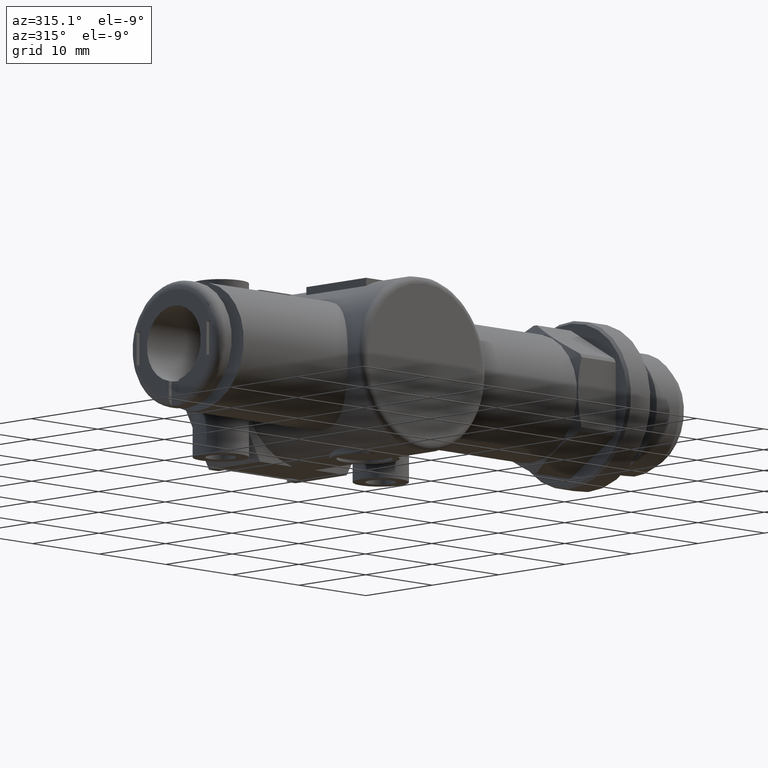
[diagram: clean part render]
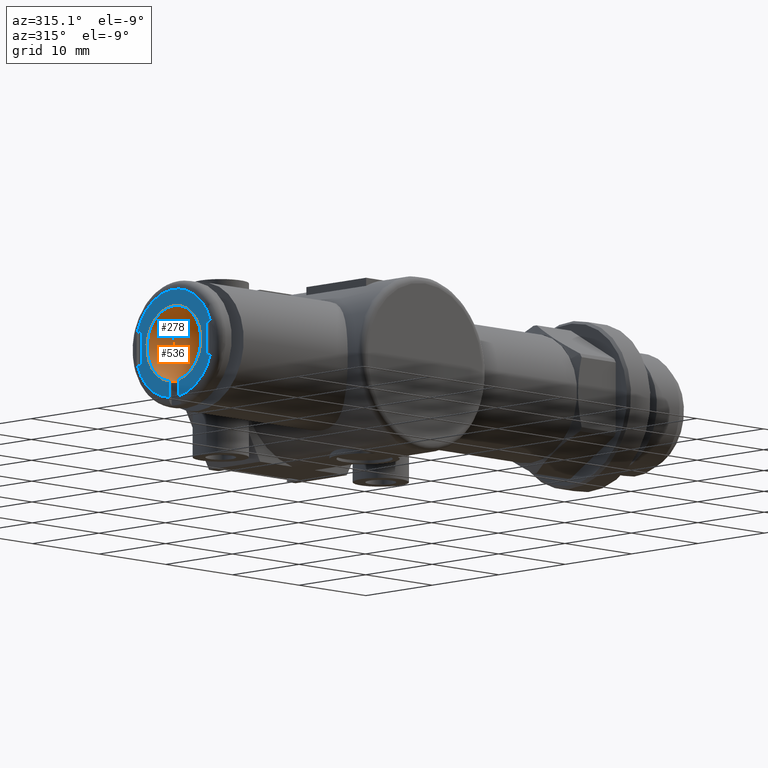
[diagram: same view with the hole feature highlighted: cylindrical wall and planar end face, labeled with their STEP entity ids]
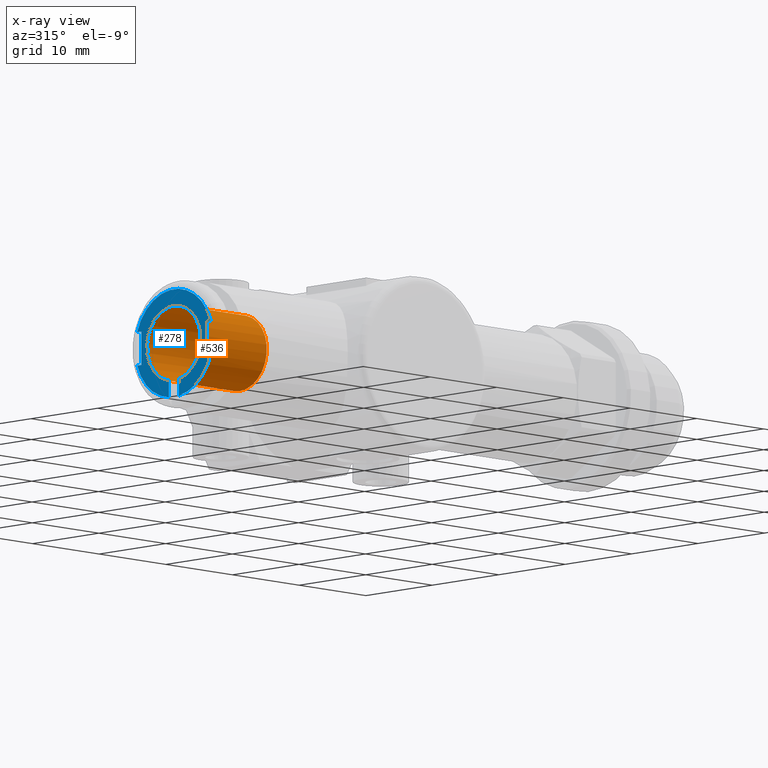
[diagram: x-ray of the same camera — body ghosted, the hole faces saturated]
A machine part, auxiliary view. The highlighted faces form one hole feature of diameter 8.1 mm: the cylindrical wall (entity #536, orange) and its adjacent planar end face (entity #278, blue) — they share a circular edge in the B-rep.
The next image is the same camera in x-ray (body ghosted, the hole faces saturated) — the bore reads through the body.
Wall:
#536 = ADVANCED_FACE( '', ( #1095, #1096 ), #1097, .F. );
#1095 = FACE_OUTER_BOUND( '', #1632, .T. );
#1096 = FACE_OUTER_BOUND( '', #1633, .T. );
#1097 = CYLINDRICAL_SURFACE( '', #1634, 4.05000000000000 );
#1632 = EDGE_LOOP( '', ( #2802 ) );
#1633 = EDGE_LOOP( '', ( #2803, #2804, #2805, #2806 ) );
#1634 = AXIS2_PLACEMENT_3D( '', #2807, #2808, #2809 );
#2802 = ORIENTED_EDGE( '', *, *, #2886, .T. );
#2803 = ORIENTED_EDGE( '', *, *, #3051, .T. );
#2804 = ORIENTED_EDGE( '', *, *, #3212, .T. );
#2805 = ORIENTED_EDGE( '', *, *, #3268, .T. );
#2806 = ORIENTED_EDGE( '', *, *, #2910, .T. );
#2807 = CARTESIAN_POINT( '', ( 9.90000000000000, 0.000000000000000, 0.000000000000000 ) );
#2808 = DIRECTION( '', ( -1.00000000000000, -0.000000000000000, 0.000000000000000 ) );
#2809 = DIRECTION( '', ( -0.000000000000000, 0.000000000000000, -1.00000000000000 ) );
#2886 = EDGE_CURVE( '', #3365, #3365, #3366, .T. );
#2910 = EDGE_CURVE( '', #3408, #3406, #3409, .F. );
#3051 = EDGE_CURVE( '', #3406, #3635, #3637, .T. );
#3212 = EDGE_CURVE( '', #3635, #3865, #3867, .F. );
#3268 = EDGE_CURVE( '', #3865, #3408, #3936, .F. );
#3365 = VERTEX_POINT( '', #4061 );
#3366 = CIRCLE( '', #4062, 4.05000000000000 );
#3406 = VERTEX_POINT( '', #4113 );
#3408 = VERTEX_POINT( '', #4116 );
#3409 = CIRCLE( '', #4117, 4.05000000000000 );
#3635 = VERTEX_POINT( '', #4777 );
#3637 = LINE( '', #4780, #4781 );
#3865 = VERTEX_POINT( '', #5259 );
#3867 = CIRCLE( '', #5262, 4.05000000000000 );
#3936 = LINE( '', #5392, #5393 );
#4061 = CARTESIAN_POINT( '', ( 9.90000000000000, 0.000000000000000, -4.05000000000000 ) );
#4062 = AXIS2_PLACEMENT_3D( '', #5464, #5465, #5466 );
#4113 = CARTESIAN_POINT( '', ( 0.000000000000000, 0.750000000000000, -3.97994974842648 ) );
#4116 = CARTESIAN_POINT( '', ( 0.000000000000000, -0.750000000000000, -3.97994974842648 ) );
#4117 = AXIS2_PLACEMENT_3D( '', #5497, #5498, #5499 );
#4777 = CARTESIAN_POINT( '', ( 0.399999999999999, 0.750000000000000, -3.97994974842648 ) );
#4780 = CARTESIAN_POINT( '', ( 9.90000000000000, 0.750000000000000, -3.97994974842648 ) );
#4781 = VECTOR( '', #5674, 1000.00000000000 );
#5259 = CARTESIAN_POINT( '', ( 0.400000000000001, -0.750000000000000, -3.97994974842648 ) );
#5262 = AXIS2_PLACEMENT_3D( '', #5863, #5864, #5865 );
#5392 = CARTESIAN_POINT( '', ( 9.90000000000000, -0.750000000000000, -3.97994974842648 ) );
#5393 = VECTOR( '', #5920, 1000.00000000000 );
#5464 = CARTESIAN_POINT( '', ( 9.90000000000000, 0.000000000000000, 0.000000000000000 ) );
#5465 = DIRECTION( '', ( 1.00000000000000, 0.000000000000000, -0.000000000000000 ) );
#5466 = DIRECTION( '', ( -0.000000000000000, 0.000000000000000, -1.00000000000000 ) );
#5497 = CARTESIAN_POINT( '', ( 0.000000000000000, 0.000000000000000, 0.000000000000000 ) );
#5498 = DIRECTION( '', ( 1.00000000000000, 0.000000000000000, 0.000000000000000 ) );
#5499 = DIRECTION( '', ( 0.000000000000000, 0.000000000000000, -1.00000000000000 ) );
#5674 = DIRECTION( '', ( 1.00000000000000, -0.000000000000000, -0.000000000000000 ) );
#5863 = CARTESIAN_POINT( '', ( 0.399999999999999, 0.000000000000000, 0.000000000000000 ) );
#5864 = DIRECTION( '', ( 1.00000000000000, 0.000000000000000, -0.000000000000000 ) );
#5865 = DIRECTION( '', ( -0.000000000000000, 0.000000000000000, -1.00000000000000 ) );
#5920 = DIRECTION( '', ( 1.00000000000000, -0.000000000000000, -0.000000000000000 ) );
End face:
#278 = ADVANCED_FACE( '', ( #636 ), #637, .F. );
#636 = FACE_OUTER_BOUND( '', #1173, .T. );
#637 = PLANE( '', #1174 );
#1173 = EDGE_LOOP( '', ( #1756, #1757, #1758, #1759, #1760, #1761, #1762, #1763, #1764, #1765, #1766, #1767 ) );
#1174 = AXIS2_PLACEMENT_3D( '', #1768, #1769, #1770 );
#1756 = ORIENTED_EDGE( '', *, *, #2857, .T. );
#1757 = ORIENTED_EDGE( '', *, *, #2907, .T. );
#1758 = ORIENTED_EDGE( '', *, *, #2908, .F. );
#1759 = ORIENTED_EDGE( '', *, *, #2909, .F. );
#1760 = ORIENTED_EDGE( '', *, *, #2910, .F. );
#1761 = ORIENTED_EDGE( '', *, *, #2911, .F. );
#1762 = ORIENTED_EDGE( '', *, *, #2912, .F. );
#1763 = ORIENTED_EDGE( '', *, *, #2880, .T. );
#1764 = ORIENTED_EDGE( '', *, *, #2913, .T. );
#1765 = ORIENTED_EDGE( '', *, *, #2914, .T. );
#1766 = ORIENTED_EDGE( '', *, *, #2915, .F. );
#1767 = ORIENTED_EDGE( '', *, *, #2916, .T. );
#1768 = CARTESIAN_POINT( '', ( 0.000000000000000, 0.000000000000000, 2.20228566286118E-016 ) );
#1769 = DIRECTION( '', ( 1.00000000000000, 0.000000000000000, 0.000000000000000 ) );
#1770 = DIRECTION( '', ( 0.000000000000000, 0.000000000000000, -1.00000000000000 ) );
#2857 = EDGE_CURVE( '', #3313, #3314, #3315, .T. );
#2880 = EDGE_CURVE( '', #3354, #3355, #3356, .T. );
#2907 = EDGE_CURVE( '', #3314, #3402, #3403, .T. );
#2908 = EDGE_CURVE( '', #3404, #3402, #3405, .T. );
#2909 = EDGE_CURVE( '', #3406, #3404, #3407, .T. );
#2910 = EDGE_CURVE( '', #3408, #3406, #3409, .F. );
#2911 = EDGE_CURVE( '', #3410, #3408, #3411, .T. );
#2912 = EDGE_CURVE( '', #3354, #3410, #3412, .T. );
#2913 = EDGE_CURVE( '', #3355, #3413, #3414, .T. );
#2914 = EDGE_CURVE( '', #3413, #3415, #3416, .T. );
#2915 = EDGE_CURVE( '', #3417, #3415, #3418, .T. );
#2916 = EDGE_CURVE( '', #3417, #3313, #3419, .T. );
#3313 = VERTEX_POINT( '', #3987 );
#3314 = VERTEX_POINT( '', #3988 );
#3315 = LINE( '', #3989, #3990 );
#3354 = VERTEX_POINT( '', #4042 );
#3355 = VERTEX_POINT( '', #4043 );
#3356 = LINE( '', #4044, #4045 );
#3402 = VERTEX_POINT( '', #4108 );
#3403 = LINE( '', #4109, #4110 );
#3404 = VERTEX_POINT( '', #4111 );
#3405 = CIRCLE( '', #4112, 5.80000000000000 );
#3406 = VERTEX_POINT( '', #4113 );
#3407 = LINE( '', #4114, #4115 );
#3408 = VERTEX_POINT( '', #4116 );
#3409 = CIRCLE( '', #4117, 4.05000000000000 );
#3410 = VERTEX_POINT( '', #4118 );
#3411 = LINE( '', #4119, #4120 );
#3412 = CIRCLE( '', #4121, 5.80000000000000 );
#3413 = VERTEX_POINT( '', #4122 );
#3414 = LINE( '', #4123, #4124 );
#3415 = VERTEX_POINT( '', #4125 );
#3416 = LINE( '', #4126, #4127 );
#3417 = VERTEX_POINT( '', #4128 );
#3418 = CIRCLE( '', #4129, 5.80000000000000 );
#3419 = LINE( '', #4130, #4131 );
#3987 = CARTESIAN_POINT( '', ( 0.000000000000000, 4.90000000000000, 1.80000000000000 ) );
#3988 = CARTESIAN_POINT( '', ( 0.000000000000000, 4.90000000000000, -1.80000000000000 ) );
#3989 = CARTESIAN_POINT( '', ( 0.000000000000000, 4.90000000000000, 1.80000000000000 ) );
#3990 = VECTOR( '', #5434, 1000.00000000000 );
#4042 = CARTESIAN_POINT( '', ( 0.000000000000000, -5.51361950083609, -1.80000000000000 ) );
#4043 = CARTESIAN_POINT( '', ( 0.000000000000000, -4.90000000000000, -1.80000000000000 ) );
#4044 = CARTESIAN_POINT( '', ( 0.000000000000000, -5.60000000000000, -1.80000000000000 ) );
#4045 = VECTOR( '', #5460, 1000.00000000000 );
#4108 = CARTESIAN_POINT( '', ( 0.000000000000000, 5.51361950083609, -1.80000000000000 ) );
#4109 = CARTESIAN_POINT( '', ( 0.000000000000000, 4.90000000000000, -1.80000000000000 ) );
#4110 = VECTOR( '', #5492, 1000.00000000000 );
#4111 = CARTESIAN_POINT( '', ( 0.000000000000000, 0.750000000000000, -5.75130419991849 ) );
#4112 = AXIS2_PLACEMENT_3D( '', #5493, #5494, #5495 );
#4113 = CARTESIAN_POINT( '', ( 0.000000000000000, 0.750000000000000, -3.97994974842648 ) );
#4114 = CARTESIAN_POINT( '', ( 0.000000000000000, 0.750000000000000, 0.000000000000000 ) );
#4115 = VECTOR( '', #5496, 1000.00000000000 );
#4116 = CARTESIAN_POINT( '', ( 0.000000000000000, -0.750000000000000, -3.97994974842648 ) );
#4117 = AXIS2_PLACEMENT_3D( '', #5497, #5498, #5499 );
#4118 = CARTESIAN_POINT( '', ( 0.000000000000000, -0.750000000000000, -5.75130419991849 ) );
#4119 = CARTESIAN_POINT( '', ( 0.000000000000000, -0.750000000000000, -6.75851315009448 ) );
#4120 = VECTOR( '', #5500, 1000.00000000000 );
#4121 = AXIS2_PLACEMENT_3D( '', #5501, #5502, #5503 );
#4122 = CARTESIAN_POINT( '', ( 0.000000000000000, -4.90000000000000, 1.80000000000000 ) );
#4123 = CARTESIAN_POINT( '', ( 0.000000000000000, -4.90000000000000, -1.80000000000000 ) );
#4124 = VECTOR( '', #5504, 1000.00000000000 );
#4125 = CARTESIAN_POINT( '', ( 0.000000000000000, -5.51361950083609, 1.80000000000000 ) );
#4126 = CARTESIAN_POINT( '', ( 0.000000000000000, -4.90000000000000, 1.80000000000000 ) );
#4127 = VECTOR( '', #5505, 1000.00000000000 );
#4128 = CARTESIAN_POINT( '', ( 0.000000000000000, 5.51361950083609, 1.80000000000000 ) );
#4129 = AXIS2_PLACEMENT_3D( '', #5506, #5507, #5508 );
#4130 = CARTESIAN_POINT( '', ( 0.000000000000000, 5.60000000000000, 1.80000000000000 ) );
#4131 = VECTOR( '', #5509, 1000.00000000000 );
#5434 = DIRECTION( '', ( 0.000000000000000, 0.000000000000000, -1.00000000000000 ) );
#5460 = DIRECTION( '', ( 0.000000000000000, 1.00000000000000, 0.000000000000000 ) );
#5492 = DIRECTION( '', ( 0.000000000000000, 1.00000000000000, 0.000000000000000 ) );
#5493 = CARTESIAN_POINT( '', ( 0.000000000000000, 0.000000000000000, 0.000000000000000 ) );
#5494 = DIRECTION( '', ( 1.00000000000000, 0.000000000000000, -0.000000000000000 ) );
#5495 = DIRECTION( '', ( -0.000000000000000, 0.000000000000000, -1.00000000000000 ) );
#5496 = DIRECTION( '', ( 0.000000000000000, 0.000000000000000, -1.00000000000000 ) );
#5497 = CARTESIAN_POINT( '', ( 0.000000000000000, 0.000000000000000, 0.000000000000000 ) );
#5498 = DIRECTION( '', ( 1.00000000000000, 0.000000000000000, 0.000000000000000 ) );
#5499 = DIRECTION( '', ( 0.000000000000000, 0.000000000000000, -1.00000000000000 ) );
#5500 = DIRECTION( '', ( 0.000000000000000, 0.000000000000000, 1.00000000000000 ) );
#5501 = CARTESIAN_POINT( '', ( 0.000000000000000, 0.000000000000000, 0.000000000000000 ) );
#5502 = DIRECTION( '', ( 1.00000000000000, 0.000000000000000, -0.000000000000000 ) );
#5503 = DIRECTION( '', ( -0.000000000000000, 0.000000000000000, -1.00000000000000 ) );
#5504 = DIRECTION( '', ( 0.000000000000000, 0.000000000000000, 1.00000000000000 ) );
#5505 = DIRECTION( '', ( 0.000000000000000, -1.00000000000000, 0.000000000000000 ) );
#5506 = CARTESIAN_POINT( '', ( 0.000000000000000, 0.000000000000000, 0.000000000000000 ) );
#5507 = DIRECTION( '', ( 1.00000000000000, 0.000000000000000, -0.000000000000000 ) );
#5508 = DIRECTION( '', ( -0.000000000000000, 0.000000000000000, -1.00000000000000 ) );
#5509 = DIRECTION( '', ( 0.000000000000000, -1.00000000000000, 0.000000000000000 ) );